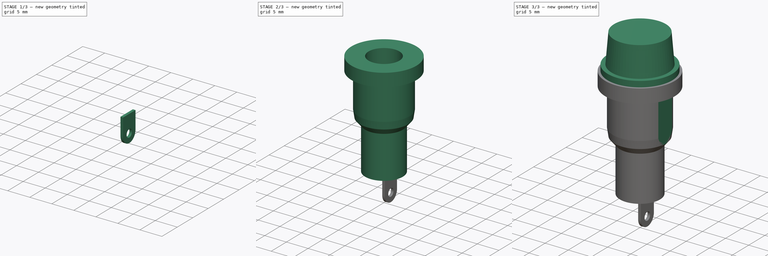
[diagram: build sequence overview — one tinted view per stage of 3, left to right]
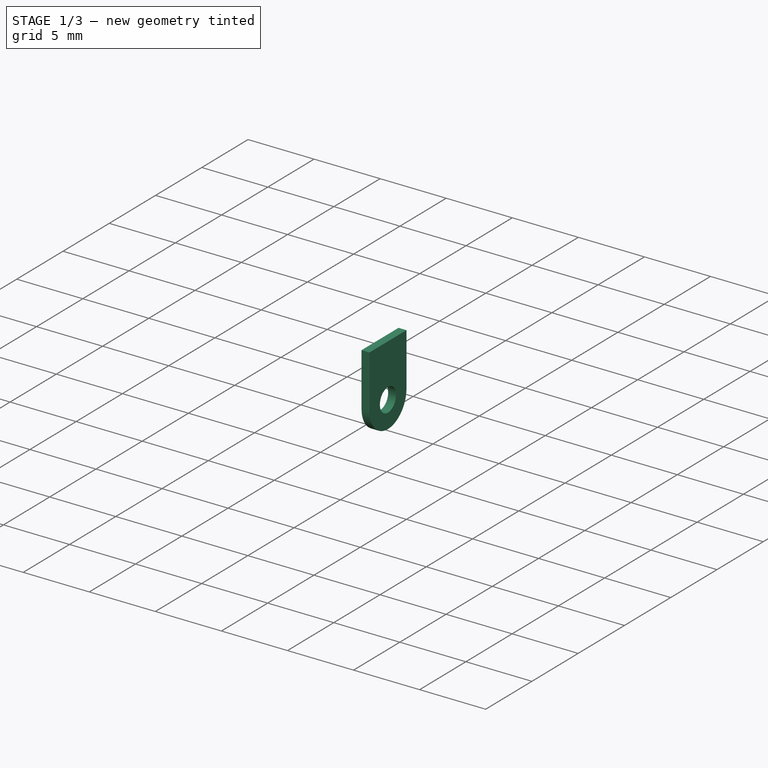
[diagram: stage 1 of 3 — iso view after this stage's code; geometry added in this stage tinted green]
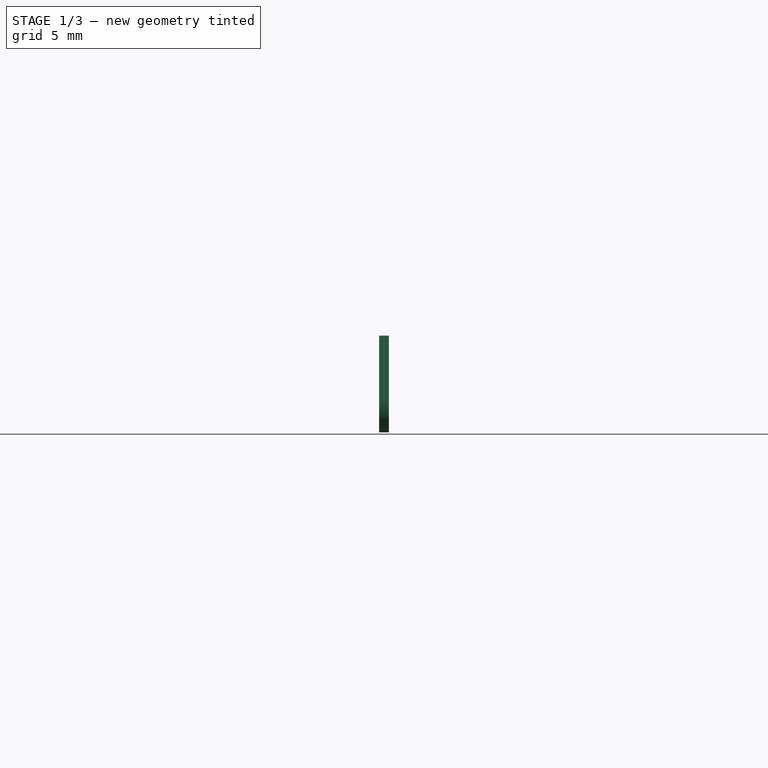
[diagram: stage 1 of 3 — front view after this stage's code; geometry added in this stage tinted green]
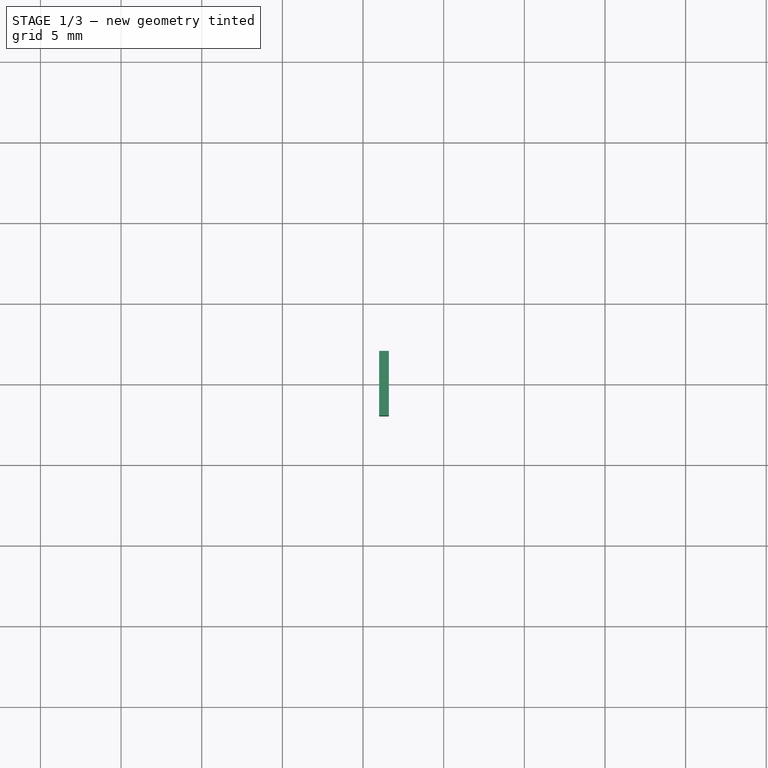
[diagram: stage 1 of 3 — top view after this stage's code; geometry added in this stage tinted green]
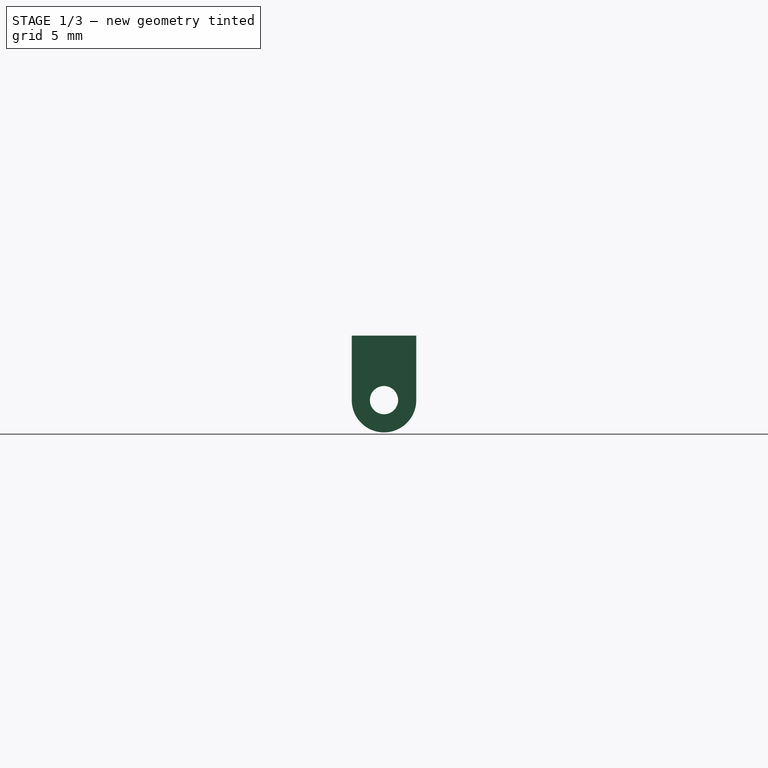
[diagram: stage 1 of 3 — right view after this stage's code; geometry added in this stage tinted green]
FCSTD DOCUMENT  (FreeCAD 0.20R29177 (Git))
Label: porteFuse_008.1
License: All rights reserved
LicenseURL: http://en.wikipedia.org/wiki/All_rights_reserved
objects: Sketcher::SketchObject×7, PartDesign::Body×4, PartDesign::Plane×3, PartDesign::Pocket×3, PartDesign::Revolution×2, PartDesign::Pad×2, Spreadsheet::Sheet×1, App::Part×1
note: 28 computed .brp shape members not serialized (recipe doc carries the construction recipe); baked Part::Feature solids carry a one-line shape summary decoded from their .brp

FEATURE [PartDesign::Body] Body012  label="cosse1"
  Group = -> [DatumPlane015,Sketch044,Pad021,Sketch045,Pocket020]
  Origin = -> Origin045
  Placement = pos=(0,0,0) rot=(0,0,1;1.5708rad)
  Tip = -> Pocket020
FEATURE [PartDesign::Plane] DatumPlane016  label="planCosse001"
  AttachmentOffset = pos=(0,0,1) rot=(0,0,1;0rad)
  Length = 60
  MapMode = 5
  Placement = pos=(1,-2e-16,2e-16) rot=(0.57735,0.57735,0.57735;2.0944rad)
  ResizeMode = 0
  Support = -> [YZ_Plane046]
  Width = 60
FEATURE [Sketcher::SketchObject] Sketch046
  FullyConstrained = false
  MapMode = 5
  Placement = pos=(1,-2e-16,2e-16) rot=(0.57735,0.57735,0.57735;2.0944rad)
  Support = -> [DatumPlane016]
  expr: Constraints[19] = <<fuse>>.corpsHautTot
  sketch-geometry (7):
    g0: LineSegment StartX=0 StartY=-24 StartZ=0 EndX=2 EndY=-24 EndZ=0
    g1: LineSegment StartX=2 StartY=-24 StartZ=0 EndX=2 EndY=-28 EndZ=0
    g2: LineSegment StartX=2 StartY=-28 StartZ=0 EndX=0 EndY=-28 EndZ=0
    g3: LineSegment StartX=0 StartY=-28 StartZ=0 EndX=0 EndY=-24 EndZ=0
    g4: ArcOfCircle CenterX=0 CenterY=-28 CenterZ=0 NormalX=0 NormalY=0 NormalZ=1 AngleXU=0 Radius=2 StartAngle=3.14159 EndAngle=6.28319
    g5: LineSegment StartX=0 StartY=-24 StartZ=0 EndX=-2 EndY=-24 EndZ=0
    g6: LineSegment StartX=-2 StartY=-24 StartZ=0 EndX=-2 EndY=-28 EndZ=0
  constraints (20):
    c: Coincident(g0,g1)
    c: Coincident(g1,g2)
    c: Coincident(g2,g3)
    c: Coincident(g3,g0)
    c: Horizontal(g0)
    c: Horizontal(g2)
    c: Vertical(g1)
    c: Vertical(g3)
    c: Coincident(g4,g2)
    c: Coincident(g4,g1)
    c: Horizontal(g5)
    c: Coincident(g5,g6)
    c: Coincident(g6,g4)
    c: Horizontal(g4,g4)
    c: Vertical(g6)
    c: DistanceX(g0,g0) = 2
    c: Coincident(g5,g0)
    c: DistanceY(g1,g0) = 4
    c: PointOnObject(g0,g-2)
    c: DistanceY(g0,g-1) = 24
FEATURE [PartDesign::Pad] Pad022
  AllowMultiFace = false
  Direction = (1,1,1)
  Length = 0.6
  Length2 = 100
  Placement = pos=(1,0,0) rot=(0.57735,0.57735,0.57735;2.0944rad)
  Profile = -> Sketch046
  Type = 0
FEATURE [Sketcher::SketchObject] Sketch047  label="Sketch006"
  ExternalGeometry = -> [Pad022]
  FullyConstrained = false
  MapMode = 5
  Placement = pos=(1.6,0,1e-16) rot=(0.57735,0.57735,0.57735;2.0944rad)
  Support = -> [Pad022]
  sketch-geometry (1):
    g0: Circle CenterX=0 CenterY=-28 CenterZ=0 NormalX=0 NormalY=0 NormalZ=1 AngleXU=0 Radius=0.875
  constraints (2):
    c: Diameter(g0) = 1.75
    c: Coincident(g0,g-3)
FEATURE [PartDesign::Pocket] Pocket021
  AllowMultiFace = false
  BaseFeature = -> Pad022
  Direction = (1,1,1)
  Length = 5
  Length2 = 100
  Placement = pos=(1,0,0) rot=(0.57735,0.57735,0.57735;2.0944rad)
  Profile = -> Sketch047
  Type = 1
FEATURE [PartDesign::Body] Body013  label="cosse002"
  Group = -> [DatumPlane016,Sketch046,Pad022,Sketch047,Pocket021]
  Origin = -> Origin046
  Placement = pos=(-1e-15,-6.2,12) rot=(0,0,1;1.5708rad)
  Tip = -> Pocket021
FEATURE [App::Part] Part011  label="porteFuse"
  Group = -> [Body010,Spreadsheet005,Body011,Body012,Body013]
  Origin = -> Origin042
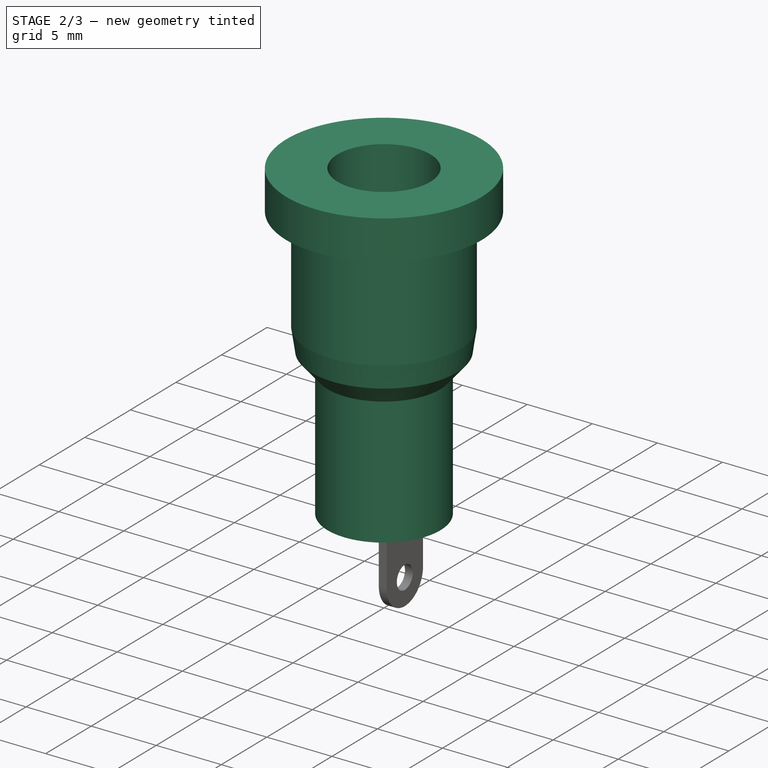
[diagram: stage 2 of 3 — iso view after this stage's code; geometry added in this stage tinted green]
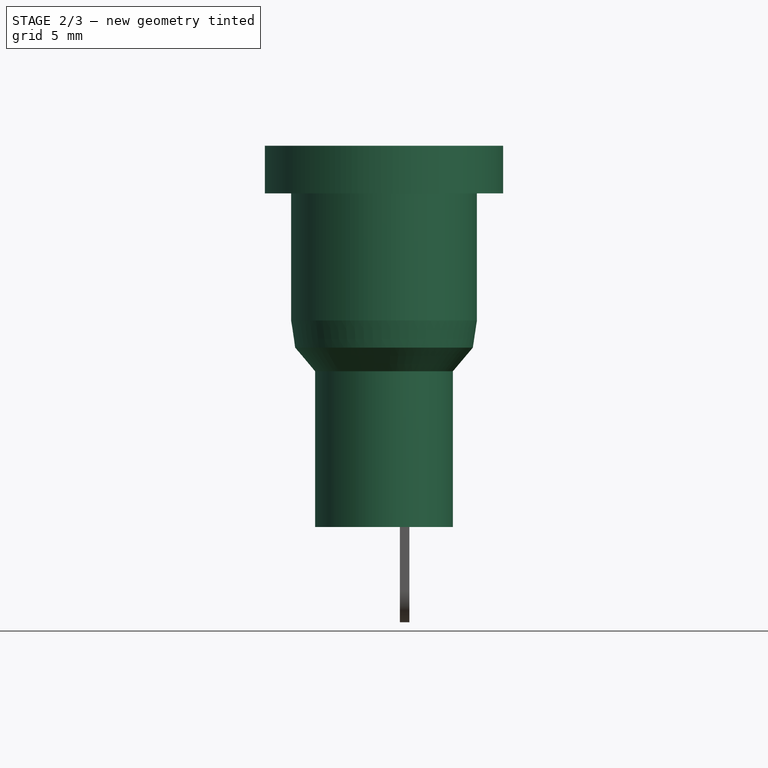
[diagram: stage 2 of 3 — front view after this stage's code; geometry added in this stage tinted green]
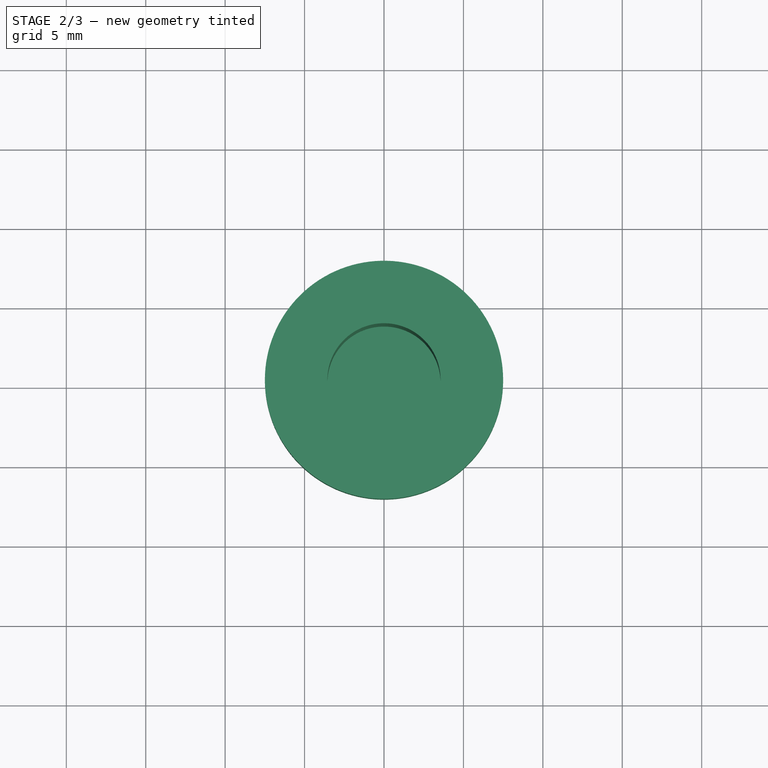
[diagram: stage 2 of 3 — top view after this stage's code; geometry added in this stage tinted green]
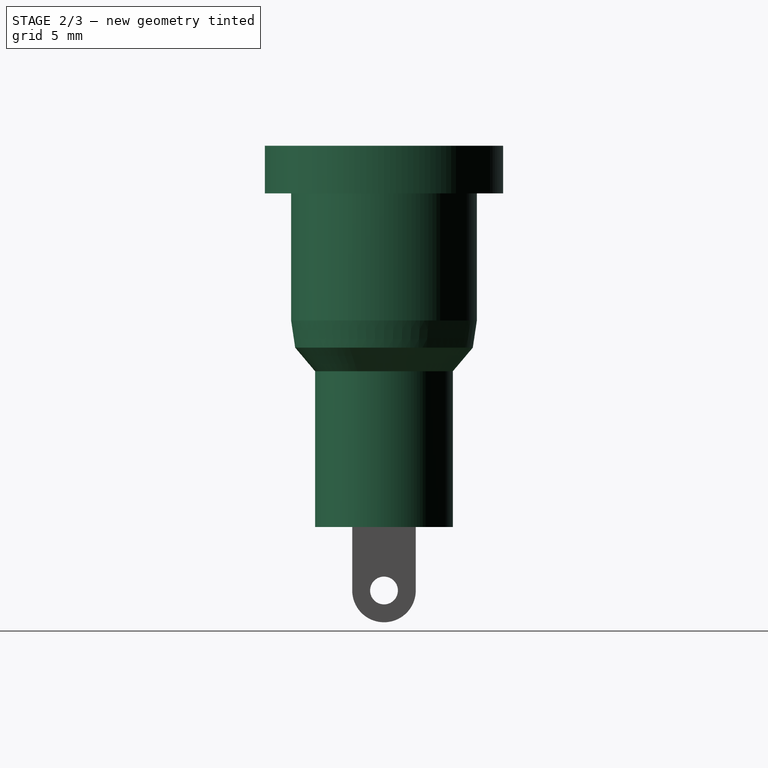
[diagram: stage 2 of 3 — right view after this stage's code; geometry added in this stage tinted green]
FEATURE [Sketcher::SketchObject] Sketch041
  FullyConstrained = false
  MapMode = 5
  Placement = pos=(0,0,0) rot=(1,0,0;1.5708rad)
  Support = -> [XZ_Plane042]
  expr: Constraints[20] = <<fuse>>.corpsDiamExt / 2
  expr: Constraints[22] = <<fuse>>.corpsHautTot
  expr: Constraints[23] = <<fuse>>.CorpsLongFutInferier
  expr: Constraints[24] = <<fuse>>.corpsDiamFutInferieur / 2
  expr: Constraints[26] = <<fuse>>.corpsDiamFilletage / 2
  expr: Constraints[27] = <<fuse>>.corpsLevreHauteur
  expr: Constraints[28] = <<fuse>>.corpsHauteurFilletage
  sketch-geometry (11):
    g0: LineSegment StartX=3.565 StartY=-12 StartZ=0 EndX=3.565 EndY=0 EndZ=0
    g1: LineSegment StartX=3.565 StartY=0 StartZ=0 EndX=7.5 EndY=0 EndZ=0
    g2: LineSegment StartX=7.5 StartY=0 StartZ=0 EndX=7.5 EndY=-3 EndZ=0
    g3: LineSegment StartX=7.5 StartY=-3 StartZ=0 EndX=5.85 EndY=-3 EndZ=0
    g4: LineSegment StartX=5.85 StartY=-3 StartZ=0 EndX=5.85 EndY=-11 EndZ=0
    g5: LineSegment StartX=5.85 StartY=-11 StartZ=0 EndX=5.5925 EndY=-12.7105 EndZ=0
    g6: LineSegment StartX=5.5925 StartY=-12.7105 StartZ=0 EndX=4.335 EndY=-14.2 EndZ=0
    g7: LineSegment StartX=4.335 StartY=-14.2 StartZ=0 EndX=4.335 EndY=-24 EndZ=0
    g8: LineSegment StartX=4.335 StartY=-24 StartZ=0 EndX=0 EndY=-24 EndZ=0
    g9: LineSegment StartX=3.565 StartY=-12 StartZ=0 EndX=0 EndY=-12 EndZ=0
    g10: LineSegment StartX=0 StartY=-12 StartZ=0 EndX=0 EndY=-24 EndZ=0
  constraints (33):
    c: PointOnObject(g0,g-1)
    c: Vertical(g0)
    c: Coincident(g0,g1)
    c: PointOnObject(g1,g-1)
    c: Coincident(g1,g2)
    c: Coincident(g2,g3)
    c: Coincident(g3,g4)
    c: Vertical(g4)
    c: Coincident(g4,g5)
    c: Coincident(g5,g6)
    c: Coincident(g6,g7)
    c: Vertical(g7)
    c: Coincident(g7,g8)
    c: Horizontal(g8)
    c: Coincident(g0,g9)
    c: Horizontal(g9)
    c: Coincident(g10,g8)
    c: Coincident(g10,g9)
    c: Vertical(g9,g-1)
    c: Vertical(g10)
    c: DistanceX(g-1,g1) = 7.5
    c: Vertical(g2)
    c: DistanceY(g8,g-1) = 24
    c: DistanceY(g7,g7) = 9.8
    c: DistanceX(g8,g8) = 4.335
    c: Horizontal(g3)
    c: DistanceX(g-1,g4) = 5.85
    c: DistanceY(g2,g2) = 3
    c: DistanceY(g4,g4) = 8
    c: DistanceX(g5) = 5.5925
    c: DistanceY(g5) = -12.7105
    c: DistanceX(g9,g9) = 3.565
    c: DistanceY(g0,g0) = 12
FEATURE [PartDesign::Revolution] Revolution
  AllowMultiFace = false
  Angle = 360
  Axis = (0,-2e-16,1)
  Base = (0,0,0)
  Placement = pos=(0,0,0) rot=(1,0,0;1.5708rad)
  Profile = -> Sketch041
  ReferenceAxis = -> Sketch041 [V_Axis]
  Reversed = true
FEATURE [PartDesign::Body] Body010  label="corps002"
  Group = -> [Sketch041,Revolution,Sketch042,DatumPlane014,Pocket019]
  Origin = -> Origin043
  Tip = -> Pocket019
FEATURE [PartDesign::Plane] DatumPlane015  label="planCosse"
  AttachmentOffset = pos=(0,0,1) rot=(0,0,1;0rad)
  Length = 60
  MapMode = 5
  Placement = pos=(1,-2e-16,2e-16) rot=(0.57735,0.57735,0.57735;2.0944rad)
  ResizeMode = 0
  Support = -> [YZ_Plane045]
  Width = 60
FEATURE [Sketcher::SketchObject] Sketch044  label="Sketch003"
  FullyConstrained = true
  MapMode = 5
  Placement = pos=(1,-2e-16,2e-16) rot=(0.57735,0.57735,0.57735;2.0944rad)
  Support = -> [DatumPlane015]
  expr: Constraints[19] = <<fuse>>.corpsHautTot
  sketch-geometry (7):
    g0: LineSegment StartX=0 StartY=-24 StartZ=0 EndX=2 EndY=-24 EndZ=0
    g1: LineSegment StartX=2 StartY=-24 StartZ=0 EndX=2 EndY=-28 EndZ=0
    g2: LineSegment StartX=2 StartY=-28 StartZ=0 EndX=0 EndY=-28 EndZ=0
    g3: LineSegment StartX=0 StartY=-28 StartZ=0 EndX=0 EndY=-24 EndZ=0
    g4: ArcOfCircle CenterX=0 CenterY=-28 CenterZ=0 NormalX=0 NormalY=0 NormalZ=1 AngleXU=0 Radius=2 StartAngle=3.14159 EndAngle=6.28319
    g5: LineSegment StartX=0 StartY=-24 StartZ=0 EndX=-2 EndY=-24 EndZ=0
    g6: LineSegment StartX=-2 StartY=-24 StartZ=0 EndX=-2 EndY=-28 EndZ=0
  constraints (20):
    c: Coincident(g0,g1)
    c: Coincident(g1,g2)
    c: Coincident(g2,g3)
    c: Coincident(g3,g0)
    c: Horizontal(g0)
    c: Horizontal(g2)
    c: Vertical(g1)
    c: Vertical(g3)
    c: Coincident(g4,g2)
    c: Coincident(g4,g1)
    c: Horizontal(g5)
    c: Coincident(g5,g6)
    c: Coincident(g6,g4)
    c: Horizontal(g4,g4)
    c: Vertical(g6)
    c: DistanceX(g0,g0) = 2
    c: Coincident(g5,g0)
    c: DistanceY(g1,g0) = 4
    c: PointOnObject(g0,g-2)
    c: DistanceY(g0,g-1) = 24
FEATURE [PartDesign::Pad] Pad021
  AllowMultiFace = false
  Direction = (1,1,1)
  Length = 0.6
  Length2 = 100
  Placement = pos=(1,0,0) rot=(0.57735,0.57735,0.57735;2.0944rad)
  Profile = -> Sketch044
  Type = 0
FEATURE [Sketcher::SketchObject] Sketch045
  ExternalGeometry = -> [Pad021]
  FullyConstrained = true
  MapMode = 5
  Placement = pos=(1.6,0,1e-16) rot=(0.57735,0.57735,0.57735;2.0944rad)
  Support = -> [Pad021]
  sketch-geometry (1):
    g0: Circle CenterX=0 CenterY=-28 CenterZ=0 NormalX=0 NormalY=0 NormalZ=1 AngleXU=0 Radius=0.875
  constraints (2):
    c: Diameter(g0) = 1.75
    c: Coincident(g0,g-3)
FEATURE [PartDesign::Pocket] Pocket020  label="Pocket001"
  AllowMultiFace = false
  BaseFeature = -> Pad021
  Direction = (1,1,1)
  Length = 5
  Length2 = 100
  Placement = pos=(1,0,0) rot=(0.57735,0.57735,0.57735;2.0944rad)
  Profile = -> Sketch045
  Type = 1
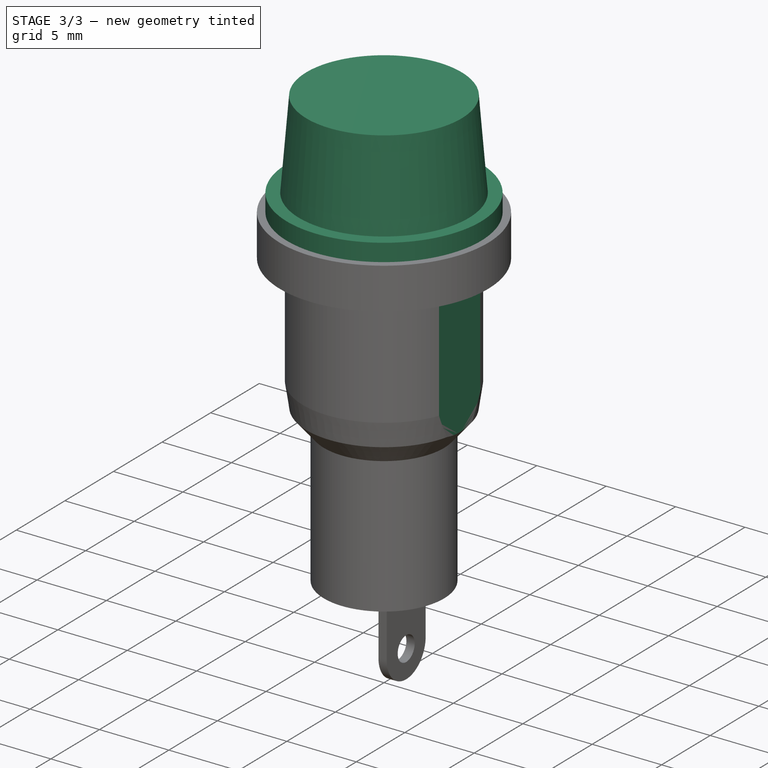
[diagram: stage 3 of 3 — iso view after this stage's code; geometry added in this stage tinted green]
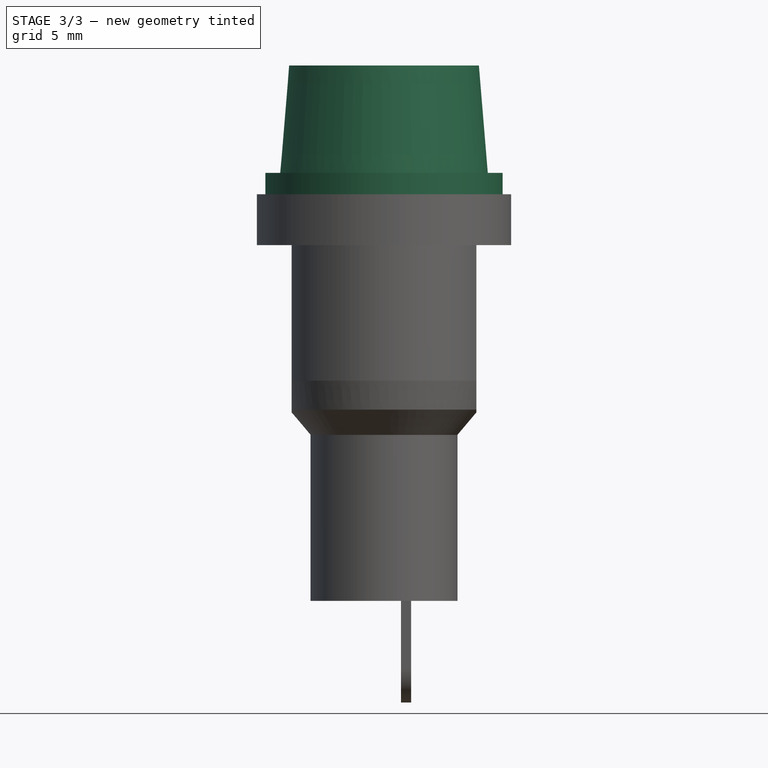
[diagram: stage 3 of 3 — front view after this stage's code; geometry added in this stage tinted green]
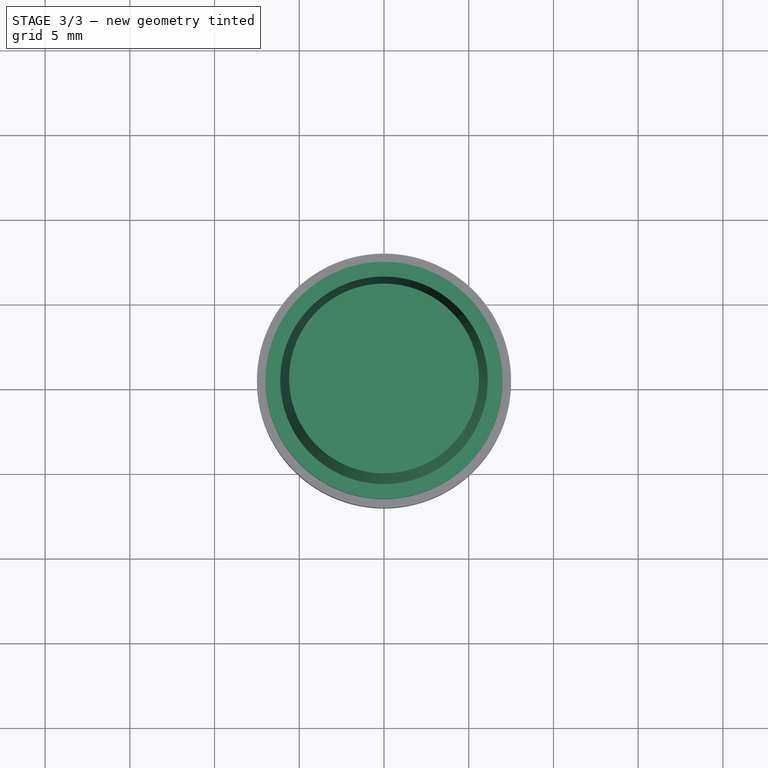
[diagram: stage 3 of 3 — top view after this stage's code; geometry added in this stage tinted green]
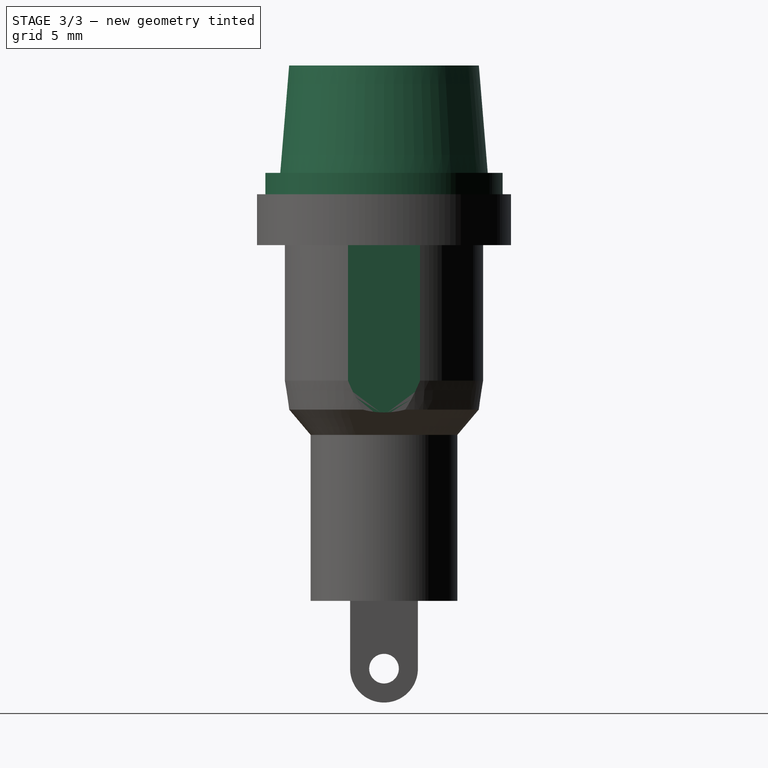
[diagram: stage 3 of 3 — right view after this stage's code; geometry added in this stage tinted green]
FEATURE [Spreadsheet::Sheet] Spreadsheet005  label="fuse"
  cells = A3=corpsDiamExt; B3(corpsDiamExt)=15; A4=corpsHautTot; B4(corpsHautTot)=24; A5=corpsPercageDiam; B5(corpsPercageDiam)==corpsDiamFilletage + corpsPercageJeu; A6=corpsLargeurMeplat; B6(corpsLargeurMeplat)=10.9; C6=A la perpendiculaire de l'axe des cosse cf. sk_meplat; A7=corpsDiamFilletage; B7(corpsDiamFilletage)=11.7; A8=corpsHauteurFilletage; B8(corpsHauteurFilletage)=8; A9=corpsPercageJeu; B9(corpsPercageJeu)=1; A10=corpsLevreHauteur; B10(corpsLevreHauteur)=3; A11=corpsDiamFutInferieur; B11(corpsDiamFutInferieur)=8.67; A12=CorpsLongFutInferier; B12(CorpsLongFutInferier)=9.800000000000001; A13=ecrouEp; B13(ecrouEp)=2; A14=ecrouLarge; B14(ecrouLarge)=14.24; A15=rondelleDiamExt; B15(rondelleDiamExt)=15.5; A16=rondelleEpaiss; B16(rondelleEpaiss)=1; A17=rondellediamInt; B17(rondellediamInt)=12.6; A18=bouchHtot; B18(bouchHtot)=12; A19=bouchHPlastique; B19(bouchHPlastique)=7.6; A20=bouchHLevre; B20(bouchHLevre)=1.26; A21=bouchDiamLevre; B21(bouchDiamLevre)=14; A22=bouchDiamInfCone; B22(bouchDiamInfCone)=12.25; A23=bouchDiamSupCone; B23(bouchDiamSupCone)=11.2; A24=bouchDiamFutLaiton; B24(bouchDiamFutLaiton)=8
FEATURE [Sketcher::SketchObject] Sketch043  label="sk_profileBouchon"
  FullyConstrained = false
  MapMode = 5
  Placement = pos=(0,0,0) rot=(1,0,0;1.5708rad)
  Support = -> [XZ_Plane044]
  expr: Constraints[10] = <<fuse>>.bouchDiamInfCone / 2
  expr: Constraints[11] = <<fuse>>.bouchDiamSupCone / 2
  expr: Constraints[20] = <<fuse>>.bouchHtot
  expr: Constraints[21] = <<fuse>>.bouchDiamFutLaiton / 2
  expr: Constraints[2] = <<fuse>>.bouchHPlastique
  expr: Constraints[4] = <<fuse>>.bouchHLevre
  expr: Constraints[5] = <<fuse>>.bouchDiamLevre / 2
  sketch-geometry (8):
    g0: LineSegment StartX=0 StartY=7.6 StartZ=0 EndX=5.6 EndY=7.6 EndZ=0
    g1: LineSegment StartX=7 StartY=1.26 StartZ=0 EndX=7 EndY=0 EndZ=0
    g2: LineSegment StartX=7 StartY=1.26 StartZ=0 EndX=6.125 EndY=1.26 EndZ=0
    g3: LineSegment StartX=6.125 StartY=1.26 StartZ=0 EndX=5.6 EndY=7.6 EndZ=0
    g4: LineSegment StartX=7 StartY=0 StartZ=0 EndX=4 EndY=0 EndZ=0
    g5: LineSegment StartX=4 StartY=0 StartZ=0 EndX=4 EndY=-4.4 EndZ=0
    g6: LineSegment StartX=4 StartY=-4.4 StartZ=0 EndX=0 EndY=-4.4 EndZ=0
    g7: LineSegment StartX=0 StartY=7.6 StartZ=0 EndX=0 EndY=-4.4 EndZ=0
  constraints (24):
    c: PointOnObject(g0,g-2)
    c: Horizontal(g0)
    c: DistanceY(g-1,g0) = 7.6
    c: Vertical(g1)
    c: DistanceY(g1,g1) = 1.26
    c: DistanceX(g-1,g1) = 7
    c: Coincident(g1,g2)
    c: Coincident(g2,g3)
    c: Coincident(g3,g0)
    c: Horizontal(g2)
    c: DistanceX(g-1,g2) = 6.125
    c: DistanceX(g0,g0) = 5.6
    c: Coincident(g4,g1)
    c: PointOnObject(g4,g-1)
    c: Horizontal(g4)
    c: Coincident(g5,g4)
    c: Vertical(g5)
    c: Coincident(g6,g5)
    c: PointOnObject(g6,g-2)
    c: Horizontal(g6)
    c: DistanceY(g6,g0) = 12
    c: DistanceX(g6,g6) = 4
    c: Coincident(g7,g0)
    c: Coincident(g7,g6)
FEATURE [PartDesign::Revolution] Revolution001
  AllowMultiFace = false
  Angle = 360
  Axis = (0,-2e-16,1)
  Base = (0,0,0)
  Placement = pos=(0,0,0) rot=(1,0,0;1.5708rad)
  Profile = -> Sketch043
  ReferenceAxis = -> Sketch043 [V_Axis]
  Reversed = true
FEATURE [PartDesign::Body] Body011  label="bouchon"
  Group = -> [Sketch043,Revolution001]
  Origin = -> Origin044
  Tip = -> Revolution001
FEATURE [PartDesign::Plane] DatumPlane014  label="planMeplat"
  AttachmentOffset = pos=(0,0,-3) rot=(0,0,1;0rad)
  Length = 60
  MapMode = 2
  Placement = pos=(0,0,-3) rot=(0,0,1;0rad)
  ResizeMode = 0
  Support = -> [XY_Plane042]
  Width = 60
  expr: .AttachmentOffset.Base.z = -<<fuse>>.corpsLevreHauteur
FEATURE [Sketcher::SketchObject] Sketch042  label="sk_meplat"
  FullyConstrained = true
  MapMode = 5
  Placement = pos=(0,0,-3) rot=(0,0,1;0rad)
  Support = -> [DatumPlane014]
  expr: Constraints[11] = <<fuse>>.corpsLargeurMeplat
  expr: Constraints[9] = <<fuse>>.corpsDiamFilletage
  sketch-geometry (5):
    g0: ArcOfCircle CenterX=0 CenterY=0 CenterZ=0 NormalX=0 NormalY=0 NormalZ=1 AngleXU=0 Radius=5.85 StartAngle=3.51353 EndAngle=5.91124
    g1: LineSegment StartX=-5.45 StartY=2.12603 StartZ=0 EndX=-5.45 EndY=-2.12603 EndZ=0
    g2: LineSegment StartX=5.45 StartY=-2.12603 StartZ=0 EndX=5.45 EndY=2.12603 EndZ=0
    g3: ArcOfCircle CenterX=0 CenterY=0 CenterZ=0 NormalX=0 NormalY=0 NormalZ=1 AngleXU=0 Radius=5.85 StartAngle=0.37194 EndAngle=2.76965
    g4: Circle CenterX=0 CenterY=0 CenterZ=0 NormalX=0 NormalY=0 NormalZ=1 AngleXU=0 Radius=10.5
  constraints (14):
    c: Vertical(g1)
    c: Vertical(g2)
    c: Coincident(g0,g1)
    c: Equal(g0,g3)
    c: Coincident(g0,g2)
    c: Coincident(g3,g2)
    c: Coincident(g0,g3)
    c: Coincident(g1,g3)
    c: Coincident(g0,g-1)
    c: Diameter(g3) = 11.7
    c: Symmetric(g1,g2,g-2)
    c: DistanceX(g0,g0) = 10.9
    c: Coincident(g4,g0)
    c: Diameter(g4) = 21
FEATURE [PartDesign::Pocket] Pocket019
  AllowMultiFace = false
  BaseFeature = -> Revolution
  Direction = (0,0,-1)
  Length = 13
  Length2 = 100
  Placement = pos=(0,0,0) rot=(1,0,0;1.5708rad)
  Profile = -> Sketch042
  Type = 0
  expr: Length = <<fuse>>.corpsHauteurFilletage + 5
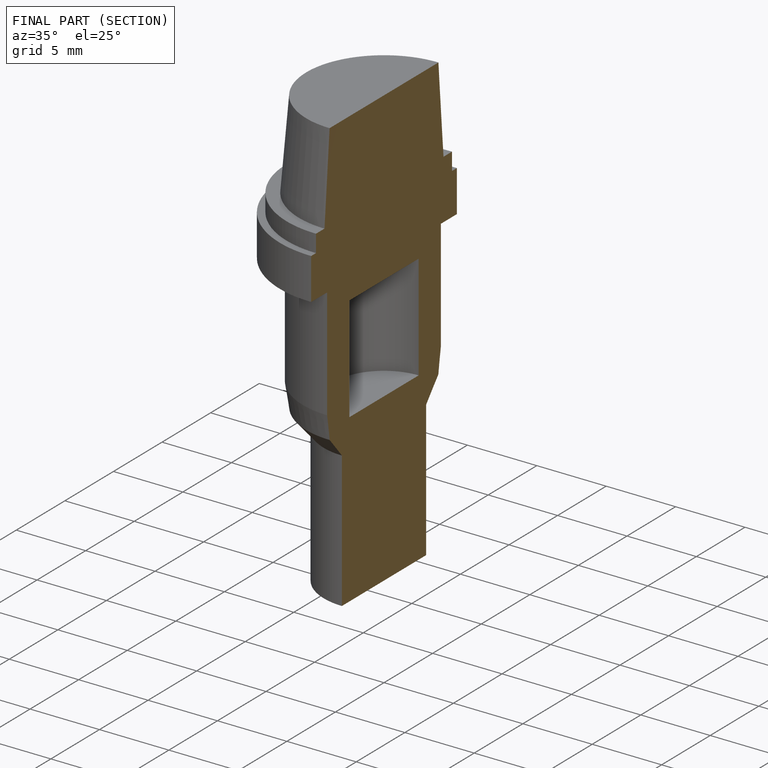
[diagram: finished part — half-section view (interior)]
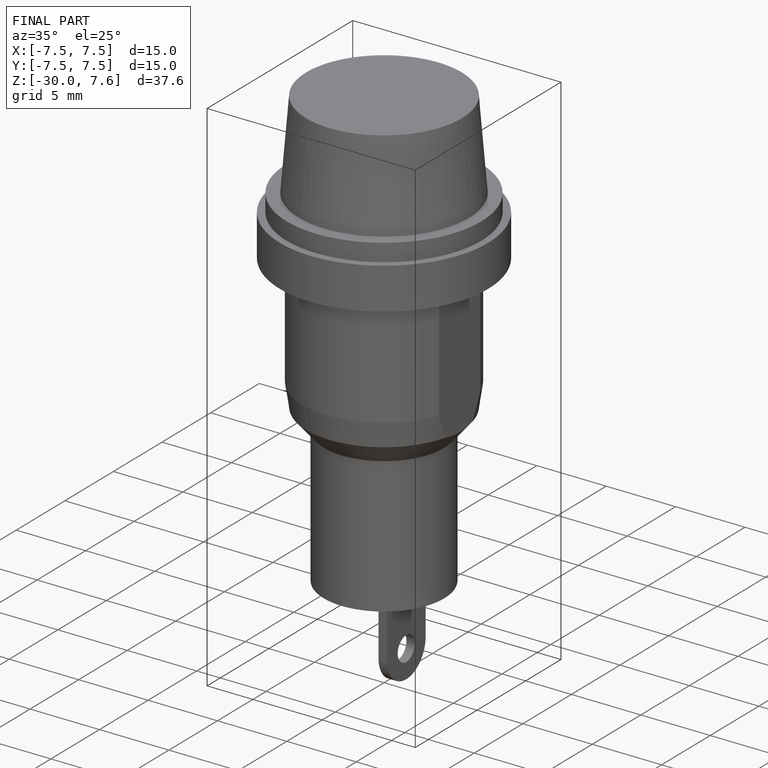
[diagram: finished part — iso view with bounding-box wireframe]
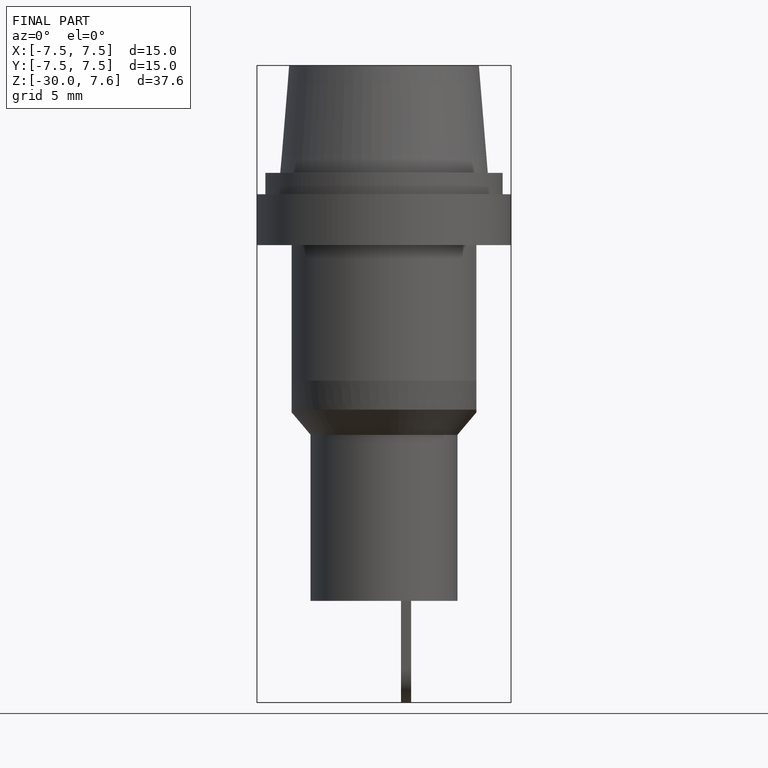
[diagram: finished part — front view with bounding-box wireframe]
